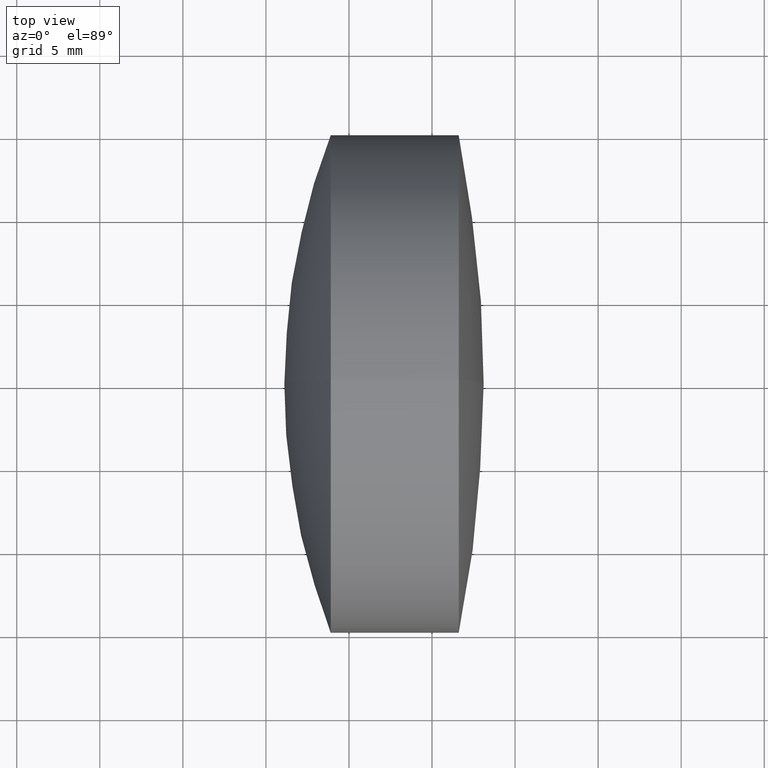
[diagram: clean part render]
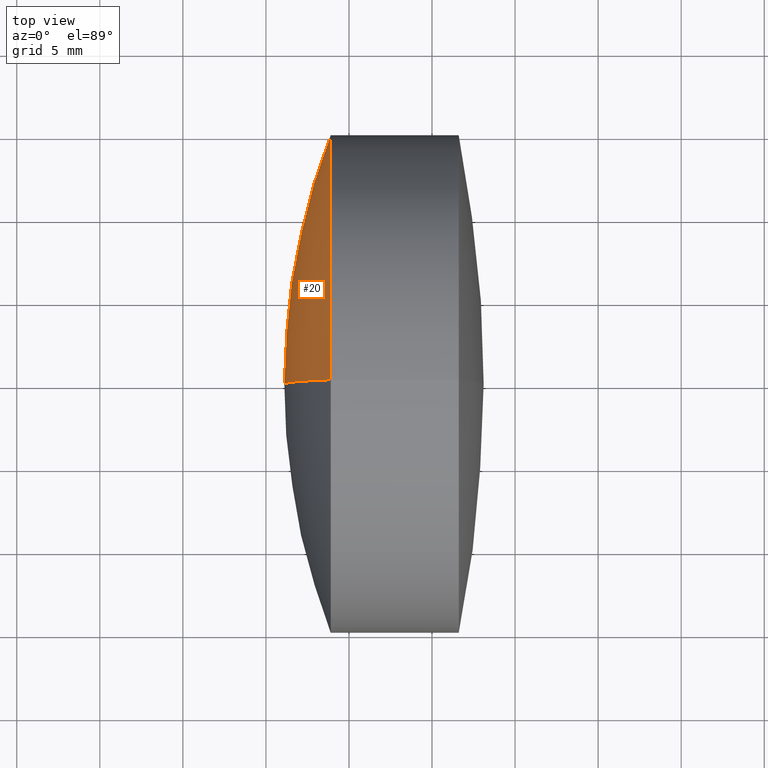
[diagram: same view with one face highlighted and labeled with its STEP entity id]
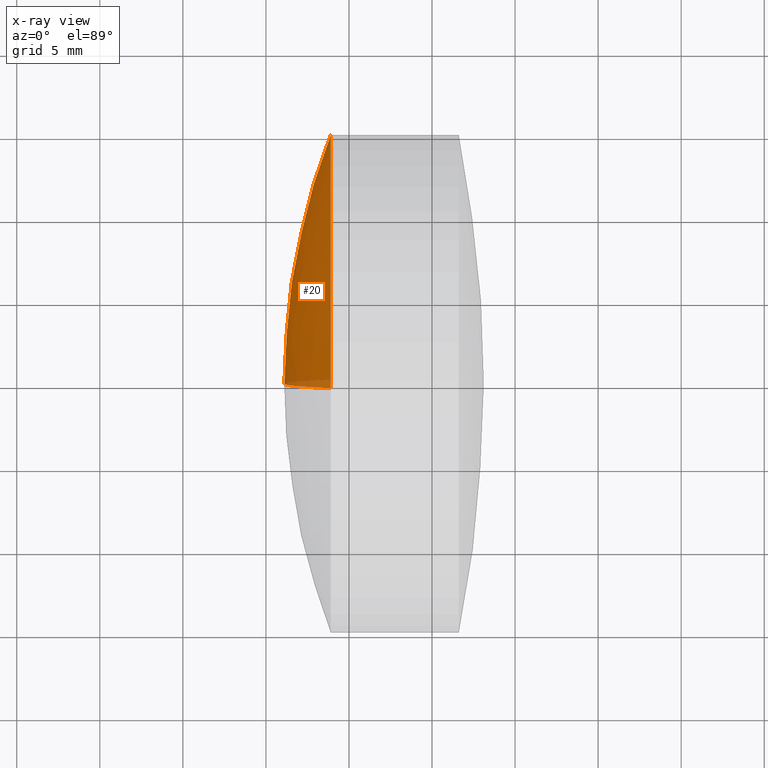
[diagram: x-ray of the same camera — body ghosted, the highlighted face saturated]
A machine part, top view. The second image highlights one B-rep face of the part: STEP entity #20.
The next image is the same camera in x-ray: the body ghosted, the highlighted face saturated — about 3% of this face is hidden behind the body in this view.
In plain terms, the highlighted spherical surface has radius 41.69 mm.
Its self-contained STEP definition (entity closure, byte-faithful):
#8 = DIRECTION ( 'NONE',  ( 0.0000000000000000000, 1.000000000000000000, -0.0000000000000000000 ) ) ;
#12 = CARTESIAN_POINT ( 'NONE',  ( 52.79869803095530000, 0.0000000000000000000, 1.064787006880972700E-016 ) ) ;
#19 = CARTESIAN_POINT ( 'NONE',  ( 52.79869803095530000, 0.0000000000000000000, 1.064787006880972700E-016 ) ) ;
#20 = ADVANCED_FACE ( 'NONE', ( #296 ), #313, .T. ) ;
#25 = AXIS2_PLACEMENT_3D ( 'NONE', #19, #200, #117 ) ;
#44 = EDGE_CURVE ( 'NONE', #98, #75, #53, .T. ) ;
#47 = AXIS2_PLACEMENT_3D ( 'NONE', #229, #323, #142 ) ;
#53 = CIRCLE ( 'NONE', #25, 41.68999999999999800 ) ;
#67 = DIRECTION ( 'NONE',  ( -0.0000000000000000000, -1.000000000000000000, -0.0000000000000000000 ) ) ;
#71 = AXIS2_PLACEMENT_3D ( 'NONE', #12, #67, #94 ) ;
#75 = VERTEX_POINT ( 'NONE', #329 ) ;
#78 = EDGE_CURVE ( 'NONE', #98, #199, #134, .T. ) ;
#82 = EDGE_LOOP ( 'NONE', ( #91, #284, #256 ) ) ;
#91 = ORIENTED_EDGE ( 'NONE', *, *, #44, .F. ) ;
#94 = DIRECTION ( 'NONE',  ( 0.0000000000000000000, 0.0000000000000000000, -1.000000000000000000 ) ) ;
#96 = CIRCLE ( 'NONE', #240, 41.68999999999999800 ) ;
#98 = VERTEX_POINT ( 'NONE', #192 ) ;
#117 = DIRECTION ( 'NONE',  ( 0.0000000000000000000, 1.224646799147353200E-016, -1.000000000000000000 ) ) ;
#134 = CIRCLE ( 'NONE', #47, 14.99999999999999600 ) ;
#142 = DIRECTION ( 'NONE',  ( 0.0000000000000000000, 0.0000000000000000000, 1.000000000000000000 ) ) ;
#164 = CARTESIAN_POINT ( 'NONE',  ( 13.90067623035469200, 0.0000000000000000000, -14.99999999999999800 ) ) ;
#175 = DIRECTION ( 'NONE',  ( 0.0000000000000000000, 0.0000000000000000000, 1.000000000000000000 ) ) ;
#192 = CARTESIAN_POINT ( 'NONE',  ( 13.90067623035469200, -1.836970198721029600E-015, 14.99999999999999800 ) ) ;
#199 = VERTEX_POINT ( 'NONE', #164 ) ;
#200 = DIRECTION ( 'NONE',  ( 0.0000000000000000000, -1.000000000000000000, -1.224646799147353200E-016 ) ) ;
#229 = CARTESIAN_POINT ( 'NONE',  ( 13.90067623035469100, 0.0000000000000000000, 0.0000000000000000000 ) ) ;
#240 = AXIS2_PLACEMENT_3D ( 'NONE', #333, #8, #175 ) ;
#256 = ORIENTED_EDGE ( 'NONE', *, *, #335, .T. ) ;
#284 = ORIENTED_EDGE ( 'NONE', *, *, #78, .T. ) ;
#296 = FACE_OUTER_BOUND ( 'NONE', #82, .T. ) ;
#313 = SPHERICAL_SURFACE ( 'NONE', #71, 41.68999999999999800 ) ;
#323 = DIRECTION ( 'NONE',  ( -1.000000000000000000, -0.0000000000000000000, -0.0000000000000000000 ) ) ;
#329 = CARTESIAN_POINT ( 'NONE',  ( 11.10869803095530100, 0.0000000000000000000, -2.446297552134560200E-015 ) ) ;
#333 = CARTESIAN_POINT ( 'NONE',  ( 52.79869803095530000, 0.0000000000000000000, 1.064787006880972700E-016 ) ) ;
#335 = EDGE_CURVE ( 'NONE', #199, #75, #96, .T. ) ;